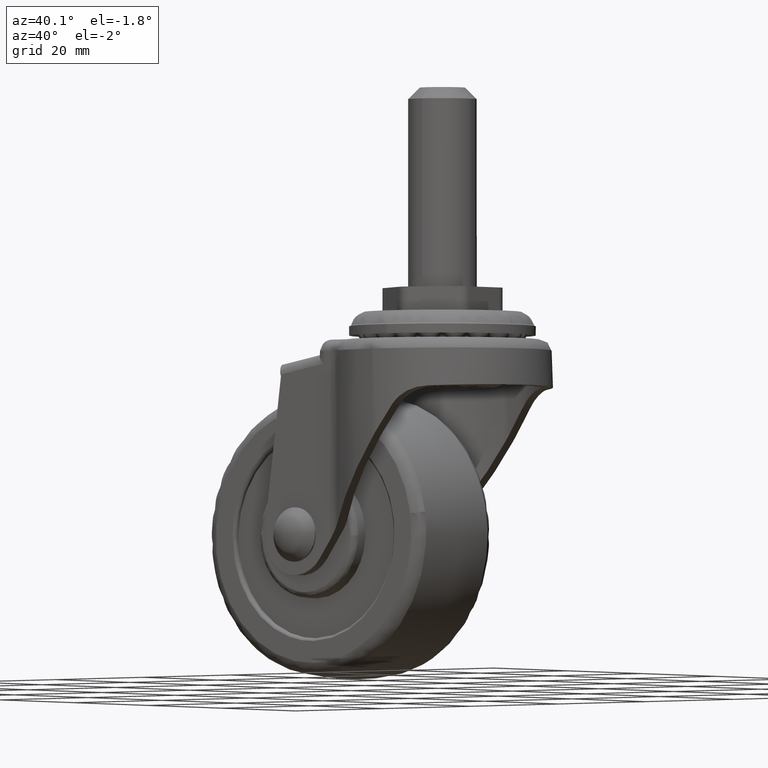
[diagram: clean part render]
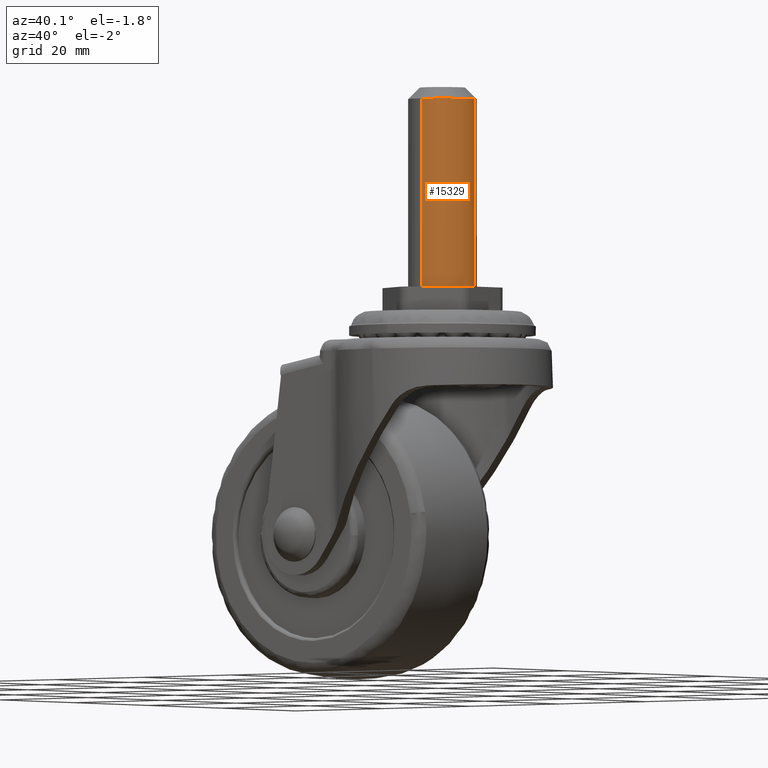
[diagram: same view with one face highlighted and labeled with its STEP entity id]
A machine part, auxiliary view. The second image highlights one B-rep face of the part: STEP entity #15329.
In plain terms, the highlighted face is a freeform B-spline surface patch.
Its self-contained STEP definition (entity closure, byte-faithful):
#15235=CARTESIAN_POINT('',(26.616861472659757,2.109707846349377,76.825000000000017));
#15236=CARTESIAN_POINT('',(26.933784116190708,1.265936710292421,76.825000000000017));
#15237=CARTESIAN_POINT('',(26.988808790530999,0.366291237209144,76.825000000000017));
#15238=CARTESIAN_POINT('',(27.355100027740129,-5.622517553321857,76.825000000000017));
#15239=CARTESIAN_POINT('',(21.366291237209129,-5.988808790530986,76.825000000000017));
#15240=CARTESIAN_POINT('',(26.616861472659757,2.109707846349377,42.154374999999995));
#15241=CARTESIAN_POINT('',(26.933784116190708,1.265936710292421,42.154375000000002));
#15242=CARTESIAN_POINT('',(26.988808790530999,0.366291237209144,42.154375000000002));
#15243=CARTESIAN_POINT('',(27.355100027740129,-5.622517553321857,42.154374999999995));
#15244=CARTESIAN_POINT('',(21.366291237209129,-5.988808790530986,42.154375000000002));
#15252=(BOUNDED_SURFACE()B_SPLINE_SURFACE(2,1,((#15235,#15240),(#15236,#15241),(#15237,#15242),(#15238,#15243),(#15239,#15244)),.UNSPECIFIED.,.F.,.F.,.U.)B_SPLINE_SURFACE_WITH_KNOTS((3,2,3),(2,2),(0.0,1.988225099390789,11.929350596344740),(0.0,34.670625000000022),.UNSPECIFIED.)GEOMETRIC_REPRESENTATION_ITEM()RATIONAL_B_SPLINE_SURFACE(((0.906274169979695,0.906274169979695),(0.941421356237309,0.941421356237309),(1.0,1.0),(0.707106781186548,0.707106781186548),(1.0,1.0)))REPRESENTATION_ITEM('')SURFACE());
#15253=CARTESIAN_POINT('',(26.616861472654680,2.109707846362880,76.0));
#15254=VERTEX_POINT('',#15253);
#15255=CARTESIAN_POINT('',(26.999999999999801,1.421085E-014,76.0));
#15256=VERTEX_POINT('',#15255);
#15257=CARTESIAN_POINT('',(26.616861472654680,2.109707846362880,76.0));
#15258=CARTESIAN_POINT('',(26.999999999999805,1.089644316415442,76.0));
#15259=CARTESIAN_POINT('',(26.999999999999801,1.421085E-014,76.0));
#15267=(BOUNDED_CURVE()B_SPLINE_CURVE(2,(#15257,#15258,#15259),.UNSPECIFIED.,.F.,.U.)B_SPLINE_CURVE_WITH_KNOTS((3,3),(0.440284170898150,0.500000000000000),.UNSPECIFIED.)CURVE()GEOMETRIC_REPRESENTATION_ITEM()RATIONAL_B_SPLINE_CURVE((0.893499554634836,0.930038554400980,1.0))REPRESENTATION_ITEM(''));
#15268=EDGE_CURVE('',#15254,#15256,#15267,.T.);
#15269=ORIENTED_EDGE('',*,*,#15268,.T.);
#15270=CARTESIAN_POINT('',(21.366291237279569,-5.988808790535906,75.999999999981583));
#15271=VERTEX_POINT('',#15270);
#15272=CARTESIAN_POINT('',(26.999999999999801,1.421085E-014,76.0));
#15273=CARTESIAN_POINT('',(26.999999999999812,-5.644236401170064,76.0));
#15274=CARTESIAN_POINT('',(21.366291237279572,-5.988808790535906,75.999999999981583));
#15282=(BOUNDED_CURVE()B_SPLINE_CURVE(2,(#15272,#15273,#15274),.UNSPECIFIED.,.F.,.U.)B_SPLINE_CURVE_WITH_KNOTS((3,3),(0.500000000000000,0.739332962233916),.UNSPECIFIED.)CURVE()GEOMETRIC_REPRESENTATION_ITEM()RATIONAL_B_SPLINE_CURVE((1.0,0.719603993292600,0.976072041655944))REPRESENTATION_ITEM(''));
#15283=EDGE_CURVE('',#15256,#15271,#15282,.T.);
#15284=ORIENTED_EDGE('',*,*,#15283,.T.);
#15285=CARTESIAN_POINT('',(21.366291237251531,-5.988808790528394,43.0));
#15286=VERTEX_POINT('',#15285);
#15287=CARTESIAN_POINT('',(21.366291237279569,-5.988808790535906,75.999999999981583));
#15288=CARTESIAN_POINT('',(21.366291237251531,-5.988808790528394,43.0));
#15289=QUASI_UNIFORM_CURVE('',1,(#15287,#15288),.UNSPECIFIED.,.F.,.U.);
#15290=EDGE_CURVE('',#15271,#15286,#15289,.T.);
#15291=ORIENTED_EDGE('',*,*,#15290,.T.);
#15292=CARTESIAN_POINT('',(26.999999999999801,1.421085E-014,43.0));
#15293=VERTEX_POINT('',#15292);
#15294=CARTESIAN_POINT('',(26.999999999999801,1.421085E-014,43.0));
#15295=CARTESIAN_POINT('',(26.999999999999801,-5.644236401353879,43.0));
#15296=CARTESIAN_POINT('',(21.366291237251531,-5.988808790528394,43.0));
#15304=(BOUNDED_CURVE()B_SPLINE_CURVE(2,(#15294,#15295,#15296),.UNSPECIFIED.,.F.,.U.)B_SPLINE_CURVE_WITH_KNOTS((3,3),(0.500000000000000,0.739332962239525),.UNSPECIFIED.)CURVE()GEOMETRIC_REPRESENTATION_ITEM()RATIONAL_B_SPLINE_CURVE((1.0,0.719603993286029,0.976072041667964))REPRESENTATION_ITEM(''));
#15305=EDGE_CURVE('',#15293,#15286,#15304,.T.);
#15306=ORIENTED_EDGE('',*,*,#15305,.F.);
#15307=CARTESIAN_POINT('',(26.616863149015980,2.109703383227403,43.0));
#15308=VERTEX_POINT('',#15307);
#15309=CARTESIAN_POINT('',(26.616863149015980,2.109703383227404,43.0));
#15310=CARTESIAN_POINT('',(26.999999999999805,1.089641854000715,43.000000000000007));
#15311=CARTESIAN_POINT('',(26.999999999999801,1.421085E-014,43.0));
#15319=(BOUNDED_CURVE()B_SPLINE_CURVE(2,(#15309,#15310,#15311),.UNSPECIFIED.,.F.,.U.)B_SPLINE_CURVE_WITH_KNOTS((3,3),(0.440284296404856,0.500000000000000),.UNSPECIFIED.)CURVE()GEOMETRIC_REPRESENTATION_ITEM()RATIONAL_B_SPLINE_CURVE((0.893499708225399,0.930038701441232,1.0))REPRESENTATION_ITEM(''));
#15320=EDGE_CURVE('',#15308,#15293,#15319,.T.);
#15321=ORIENTED_EDGE('',*,*,#15320,.F.);
#15322=CARTESIAN_POINT('',(26.616861472654680,2.109707846362880,76.0));
#15323=CARTESIAN_POINT('',(26.616863149015980,2.109703383227403,43.0));
#15324=QUASI_UNIFORM_CURVE('',1,(#15322,#15323),.UNSPECIFIED.,.F.,.U.);
#15325=EDGE_CURVE('',#15254,#15308,#15324,.T.);
#15326=ORIENTED_EDGE('',*,*,#15325,.F.);
#15327=EDGE_LOOP('',(#15269,#15284,#15291,#15306,#15321,#15326));
#15328=FACE_OUTER_BOUND('',#15327,.T.);
#15329=ADVANCED_FACE('',(#15328),#15252,.T.);